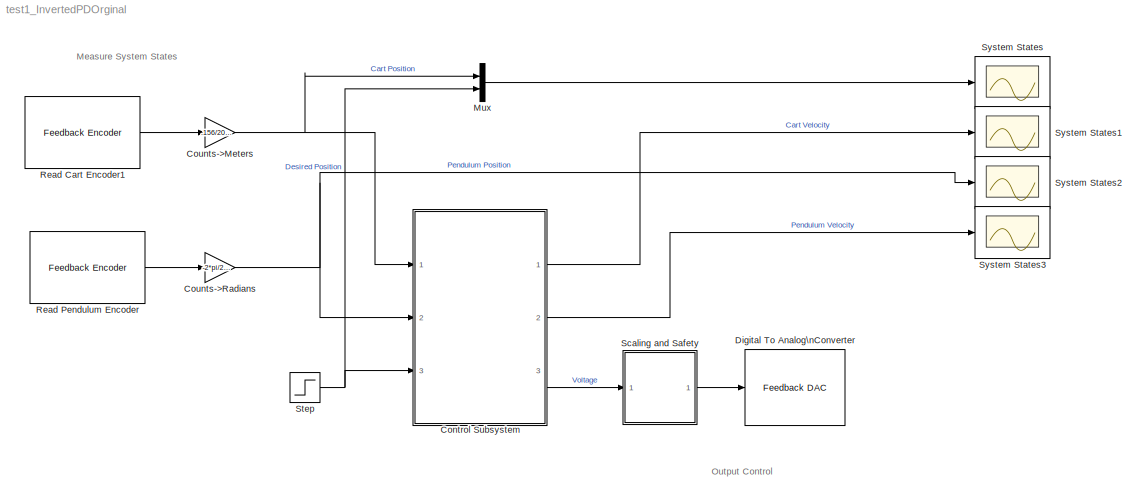
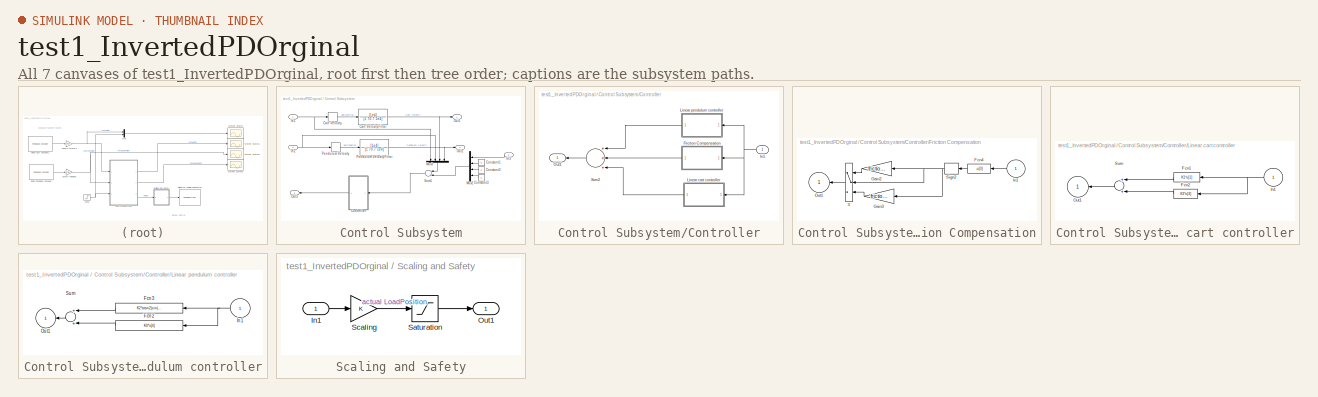
[diagram: thumbnail index - all 7 canvases of the model, root first then tree order]
MODEL test1_InvertedPDOrginal
KIND model
CONFIG AbsTol = auto
CONFIG FixedStep = 0.001
CONFIG MaxStep = auto
CONFIG MinStep = auto
CONFIG RelTol = 1e-3
CONFIG Solver = ode1
CONFIG SolverMode = SingleTasking
CONFIG StartTime = 0.0
CONFIG StopTime = 120.0
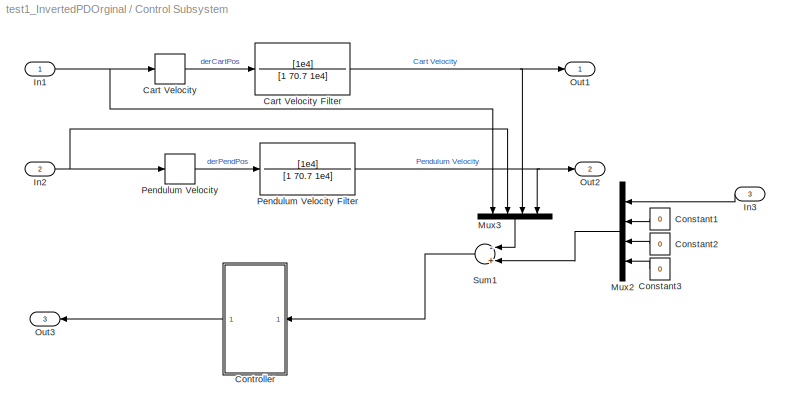
BLOCK [SubSystem] Control Subsystem
  Ports = [3, 3]
  TreatAsAtomicUnit = off
BLOCK [Derivative] Control Subsystem/Cart Velocity
BLOCK [TransferFcn] Control Subsystem/Cart Velocity Filter
  Denominator = [1 70.7 1e4]
  Numerator = [1e4]
BLOCK [Constant] Control Subsystem/Constant1
  Value = 0
BLOCK [Constant] Control Subsystem/Constant2
  Value = 0
BLOCK [Constant] Control Subsystem/Constant3
  Value = 0
BLOCK [SubSystem] Control Subsystem/Controller
  Ports = [1, 1]
  TreatAsAtomicUnit = off
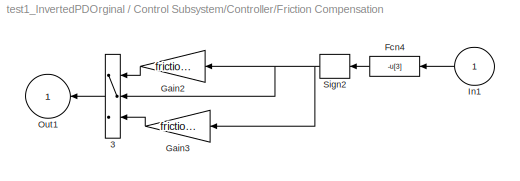
BLOCK [SubSystem] Control Subsystem/Controller/Friction Compensation
  MaskCallbackString = |
  MaskDisplay = plot(0,0,100,100,[40,30,20],[87,85,80],[46,54,54,46,46],[90,90,80,80,90],[46,45,45,46,54,55,55,54,46],[78,80,90,91,91,90,80,78,78],[51,51,49,49],[78,10,10,78],[90,80,70,60],[70,80,85,88],[20,10],[80,70],[20,20,15],[73,80,80],[85,80,80],[80,80,74])  <repeated x3 — deduplicated; at blocks: Friction Compensation, Linear cart controller, Linear pendulum controller>
  MaskEnableString = on,on
  MaskIconFrame = on
  MaskIconOpaque = on
  MaskIconRotate = none
  MaskIconUnits = autoscale
  MaskPromptString = Friction Compensation Magnitude in Negative Direction|Friction Compensation Magnitude in Positive Direction
  MaskStyleString = edit,edit
  MaskToolTipString = on,on
  MaskTunableValueString = on,on
  MaskType = linear
  MaskValueString = .3|.3
  MaskVarAliasString = ,
  MaskVariables = frictionCompNeg=@1;frictionCompPos=@2;
  MaskVisibilityString = on,on
  Ports = [1, 1]
  TreatAsAtomicUnit = off
BLOCK [Switch] Control Subsystem/Controller/Friction Compensation/3
BLOCK [Fcn] Control Subsystem/Controller/Friction Compensation/Fcn4
  Expr = -u[3]
BLOCK [Gain] Control Subsystem/Controller/Friction Compensation/Gain2
  Gain = frictionCompPos
BLOCK [Gain] Control Subsystem/Controller/Friction Compensation/Gain3
  Gain = frictionCompNeg
BLOCK [Inport] Control Subsystem/Controller/Friction Compensation/In1
BLOCK [Outport] Control Subsystem/Controller/Friction Compensation/Out1
  InitialOutput = 0
BLOCK [Signum] Control Subsystem/Controller/Friction Compensation/Sign2
  Tag = T
BLOCK [Inport] Control Subsystem/Controller/In1
BLOCK [SubSystem] Control Subsystem/Controller/Linear cart controller
  MaskCallbackString = |
  MaskEnableString = on,on
  MaskIconFrame = on
  MaskIconOpaque = on
  MaskIconRotate = none
  MaskIconUnits = autoscale
  MaskPromptString = K1  - position  feedback| K3  -  velocity  feedback
  MaskStyleString = edit,edit
  MaskToolTipString = on,on
  MaskTunableValueString = on,on
  MaskType = linear
  MaskValueString = -20|-20.2234
  MaskVarAliasString = ,
  MaskVariables = K1=@1;K3=@2;
  MaskVisibilityString = on,on
  Ports = [1, 1]
  TreatAsAtomicUnit = off
BLOCK [Fcn] Control Subsystem/Controller/Linear cart controller/Fcn1
  Expr = K1*u[1]
BLOCK [Fcn] Control Subsystem/Controller/Linear cart controller/Fcn2
  Expr = K3*u[3]
BLOCK [Inport] Control Subsystem/Controller/Linear cart controller/In1
BLOCK [Outport] Control Subsystem/Controller/Linear cart controller/Out1
  InitialOutput = 0
BLOCK [Sum] Control Subsystem/Controller/Linear cart controller/Sum
  Ports = [2, 1]
BLOCK [SubSystem] Control Subsystem/Controller/Linear pendulum controller
  MaskCallbackString = |
  MaskEnableString = on,on
  MaskIconFrame = on
  MaskIconOpaque = on
  MaskIconRotate = none
  MaskIconUnits = autoscale
  MaskPromptString = K2  - angle  feedback| K4  - angular velocity  feedback
  MaskStyleString = edit,edit
  MaskToolTipString = on,on
  MaskTunableValueString = on,on
  MaskType = linear
  MaskValueString = 72.3354|12.5876
  MaskVarAliasString = ,
  MaskVariables = K2=@1;K4=@2;
  MaskVisibilityString = on,on
  Ports = [1, 1]
  TreatAsAtomicUnit = off
BLOCK [Fcn] Control Subsystem/Controller/Linear pendulum controller/Fcn2
  Expr = K4*u[4]
BLOCK [Fcn] Control Subsystem/Controller/Linear pendulum controller/Fcn3
  Expr = K2*atan2(sin(u[2]),cos(u[2]))
BLOCK [Inport] Control Subsystem/Controller/Linear pendulum controller/In1
BLOCK [Outport] Control Subsystem/Controller/Linear pendulum controller/Out1
  InitialOutput = 0
BLOCK [Sum] Control Subsystem/Controller/Linear pendulum controller/Sum
  Ports = [2, 1]
BLOCK [Outport] Control Subsystem/Controller/Out1
BLOCK [Sum] Control Subsystem/Controller/Sum2
  Inputs = +++
  Ports = [3, 1]
BLOCK [Inport] Control Subsystem/In1
BLOCK [Inport] Control Subsystem/In2
  Port = 2
BLOCK [Inport] Control Subsystem/In3
  Port = 3
BLOCK [Mux] Control Subsystem/Mux2
  DisplayOption = bar
  Ports = [4, 1]
BLOCK [Mux] Control Subsystem/Mux3
  Ports = [4, 1]
BLOCK [Outport] Control Subsystem/Out1
BLOCK [Outport] Control Subsystem/Out2
  Port = 2
BLOCK [Outport] Control Subsystem/Out3
  Port = 3
BLOCK [Derivative] Control Subsystem/Pendulum Velocity
BLOCK [TransferFcn] Control Subsystem/Pendulum Velocity  Filter
  Denominator = [1 70.7 1e4]
  Numerator = [1e4]
BLOCK [Sum] Control Subsystem/Sum1
  Inputs = -+
  Ports = [2, 1]
BLOCK [Gain] Counts->Meters
  Gain = .156/2048
BLOCK [Gain] Counts->Radians
  Gain = -2*pi/2048
BLOCK [Reference] Digital To Analog\nConverter  REF=pci1711/Advantech \nPCI1711 I//O Board Lib/Feedback DAC
  Ports = [1]
  SourceBlock = pci1711/Advantech \nPCI1711 I//O Board Lib/Feedback DAC
  SourceType = DAC Unit for Feedback Experiments
  channel = 0
  hwAccess = on
  range = 0
  tsamp = 0.001
BLOCK [Mux] Mux
  DisplayOption = bar
  Inputs = 2
  Ports = [2, 1]
BLOCK [Reference] Read Cart Encoder1  REF=pci1711/Advantech \nPCI1711 I//O Board Lib/Feedback Encoder 
  Ports = [0, 1]
  SourceBlock = pci1711/Advantech \nPCI1711 I//O Board Lib/Feedback Encoder
  SourceType = Feedback Encoder Block
  channel = 0
  hwAccess = on
  offset = 0
  tsamp = 0.001
BLOCK [Reference] Read Pendulum Encoder  REF=pci1711/Advantech \nPCI1711 I//O Board Lib/Feedback Encoder 
  Ports = [0, 1]
  SourceBlock = pci1711/Advantech \nPCI1711 I//O Board Lib/Feedback Encoder
  SourceType = Feedback Encoder Block
  channel = 1
  hwAccess = on
  offset = 0
  tsamp = 0.001
BLOCK [SubSystem] Scaling and Safety
  Ports = [1, 1]
  TreatAsAtomicUnit = off
BLOCK [Inport] Scaling and Safety/In1
BLOCK [Outport] Scaling and Safety/Out1
BLOCK [Saturate] Scaling and Safety/Saturation
  LowerLimit = -2.5
  UpperLimit = 2.5
BLOCK [Gain] Scaling and Safety/Scaling
BLOCK [Step] Step
  After = 0.2
  SampleTime = 0
  Time = 30
BLOCK [Scope] System States
  DataFormat = StructureWithTime
  Decimation = 0.1
  ExtModeUploadOption = log
  LimitDataPoints = off
  NumInputPorts = 1
  Ports = [1]
  SampleInput = on
  SampleTime = 0.01
  SaveName = y
  SaveToWorkspace = on
  TimeRange = 50
  YMax = 0.325
  YMin = 1.38778e-017
BLOCK [Scope] System States1
  DataFormat = StructureWithTime
  Decimation = 0.1
  ExtModeUploadOption = log
  LimitDataPoints = off
  NumInputPorts = 1
  Ports = [1]
  SampleInput = on
  SampleTime = 0.01
  SaveName = y1
  SaveToWorkspace = on
  TimeRange = 50
  YMax = 0.025
  YMin = -0.125
BLOCK [Scope] System States2
  DataFormat = StructureWithTime
  Decimation = 0.1
  ExtModeUploadOption = log
  LimitDataPoints = off
  NumInputPorts = 1
  Ports = [1]
  SampleInput = on
  SampleTime = 0.01
  SaveName = y2
  SaveToWorkspace = on
  TimeRange = 50
  YMax = -0.006
  YMin = -0.0125
BLOCK [Scope] System States3
  DataFormat = StructureWithTime
  Decimation = 0.1
  ExtModeUploadOption = log
  LimitDataPoints = off
  NumInputPorts = 1
  Ports = [1]
  SampleInput = on
  SampleTime = 0.01
  SaveName = y3
  SaveToWorkspace = on
  TimeRange = 50
  YMax = 0.025
  YMin = -0.125
ANNOTATION (root): Measure System States
ANNOTATION (root): Output Control
NET Control Subsystem/Cart Velocity Filter:1 -> Control Subsystem/Mux3:3, Control Subsystem/Out1:1
LINE Control Subsystem/Cart Velocity:1 -> Control Subsystem/Cart Velocity Filter:1
LINE Control Subsystem/Constant1:1 -> Control Subsystem/Mux2:2
LINE Control Subsystem/Constant2:1 -> Control Subsystem/Mux2:3
LINE Control Subsystem/Constant3:1 -> Control Subsystem/Mux2:4
LINE Control Subsystem/Controller/Friction Compensation/3:1 -> Control Subsystem/Controller/Friction Compensation/Out1:1
LINE Control Subsystem/Controller/Friction Compensation/Fcn4:1 -> Control Subsystem/Controller/Friction Compensation/Sign2:1
LINE Control Subsystem/Controller/Friction Compensation/Gain2:1 -> Control Subsystem/Controller/Friction Compensation/3:1
LINE Control Subsystem/Controller/Friction Compensation/Gain3:1 -> Control Subsystem/Controller/Friction Compensation/3:3
LINE Control Subsystem/Controller/Friction Compensation/In1:1 -> Control Subsystem/Controller/Friction Compensation/Fcn4:1
NET Control Subsystem/Controller/Friction Compensation/Sign2:1 -> Control Subsystem/Controller/Friction Compensation/3:2, Control Subsystem/Controller/Friction Compensation/Gain2:1, Control Subsystem/Controller/Friction Compensation/Gain3:1
LINE Control Subsystem/Controller/Friction Compensation:1 -> Control Subsystem/Controller/Sum2:2
NET Control Subsystem/Controller/In1:1 -> Control Subsystem/Controller/Friction Compensation:1, Control Subsystem/Controller/Linear cart controller:1, Control Subsystem/Controller/Linear pendulum controller:1
LINE Control Subsystem/Controller/Linear cart controller/Fcn1:1 -> Control Subsystem/Controller/Linear cart controller/Sum:1
LINE Control Subsystem/Controller/Linear cart controller/Fcn2:1 -> Control Subsystem/Controller/Linear cart controller/Sum:2
NET Control Subsystem/Controller/Linear cart controller/In1:1 -> Control Subsystem/Controller/Linear cart controller/Fcn1:1, Control Subsystem/Controller/Linear cart controller/Fcn2:1
LINE Control Subsystem/Controller/Linear cart controller/Sum:1 -> Control Subsystem/Controller/Linear cart controller/Out1:1
LINE Control Subsystem/Controller/Linear cart controller:1 -> Control Subsystem/Controller/Sum2:3
LINE Control Subsystem/Controller/Linear pendulum controller/Fcn2:1 -> Control Subsystem/Controller/Linear pendulum controller/Sum:2
LINE Control Subsystem/Controller/Linear pendulum controller/Fcn3:1 -> Control Subsystem/Controller/Linear pendulum controller/Sum:1
NET Control Subsystem/Controller/Linear pendulum controller/In1:1 -> Control Subsystem/Controller/Linear pendulum controller/Fcn2:1, Control Subsystem/Controller/Linear pendulum controller/Fcn3:1
LINE Control Subsystem/Controller/Linear pendulum controller/Sum:1 -> Control Subsystem/Controller/Linear pendulum controller/Out1:1
LINE Control Subsystem/Controller/Linear pendulum controller:1 -> Control Subsystem/Controller/Sum2:1
LINE Control Subsystem/Controller/Sum2:1 -> Control Subsystem/Controller/Out1:1
LINE Control Subsystem/Controller:1 -> Control Subsystem/Out3:1
NET Control Subsystem/In1:1 -> Control Subsystem/Cart Velocity:1, Control Subsystem/Mux3:1
NET Control Subsystem/In2:1 -> Control Subsystem/Mux3:2, Control Subsystem/Pendulum Velocity:1
LINE Control Subsystem/In3:1 -> Control Subsystem/Mux2:1
LINE Control Subsystem/Mux2:1 -> Control Subsystem/Sum1:2
LINE Control Subsystem/Mux3:1 -> Control Subsystem/Sum1:1
NET Control Subsystem/Pendulum Velocity  Filter:1 -> Control Subsystem/Mux3:4, Control Subsystem/Out2:1
LINE Control Subsystem/Pendulum Velocity:1 -> Control Subsystem/Pendulum Velocity  Filter:1
LINE Control Subsystem/Sum1:1 -> Control Subsystem/Controller:1
LINE Control Subsystem:1 -> System States1:1
LINE Control Subsystem:2 -> System States3:1
LINE Control Subsystem:3 -> Scaling and Safety:1
NET Counts->Meters:1 -> Control Subsystem:1, Mux:1
NET Counts->Radians:1 -> Control Subsystem:2, System States2:1
LINE Mux:1 -> System States:1
LINE Read Cart Encoder1:1 -> Counts->Meters:1
LINE Read Pendulum Encoder:1 -> Counts->Radians:1
LINE Scaling and Safety/In1:1 -> Scaling and Safety/Scaling:1
LINE Scaling and Safety/Saturation:1 -> Scaling and Safety/Out1:1
LINE Scaling and Safety/Scaling:1 -> Scaling and Safety/Saturation:1
LINE Scaling and Safety:1 -> Digital To Analog\nConverter:1
NET Step:1 -> Control Subsystem:3, Mux:2
note: NET lines group one-source signal fan-out (src -> all destinations, sorted); 1:1 wires keep LINE
